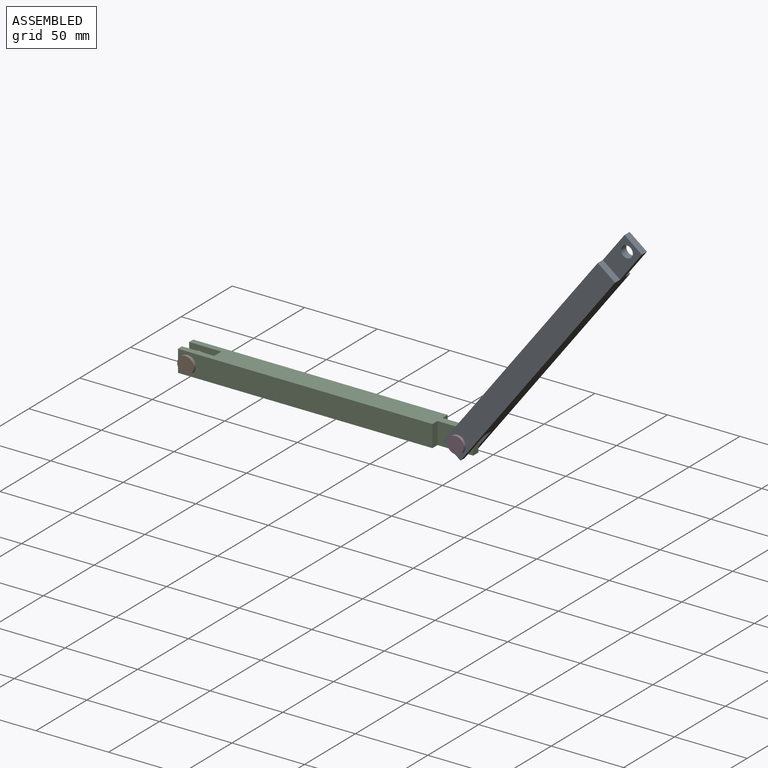
[diagram: assembled view]
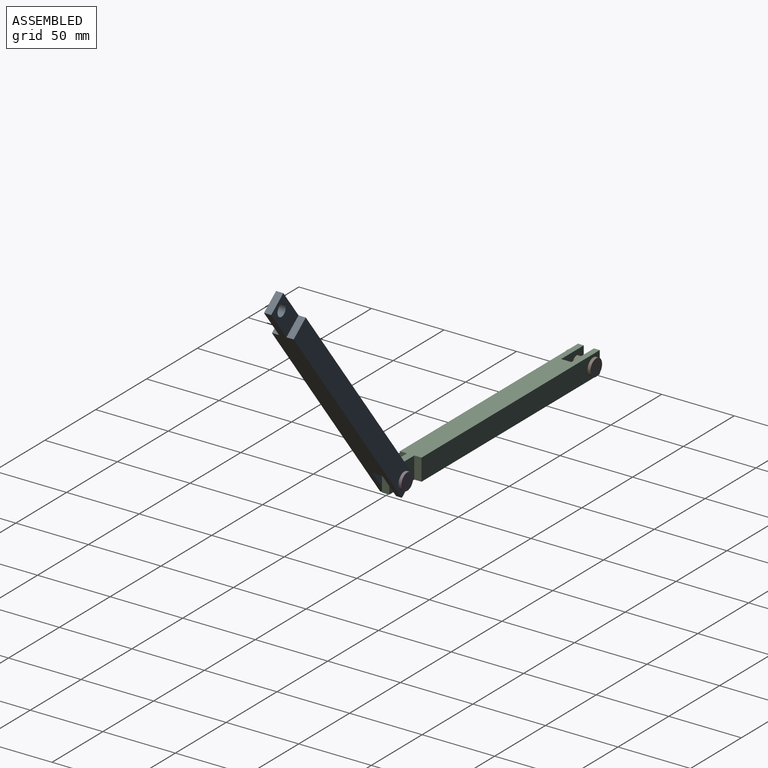
[diagram: assembled view, second angle]
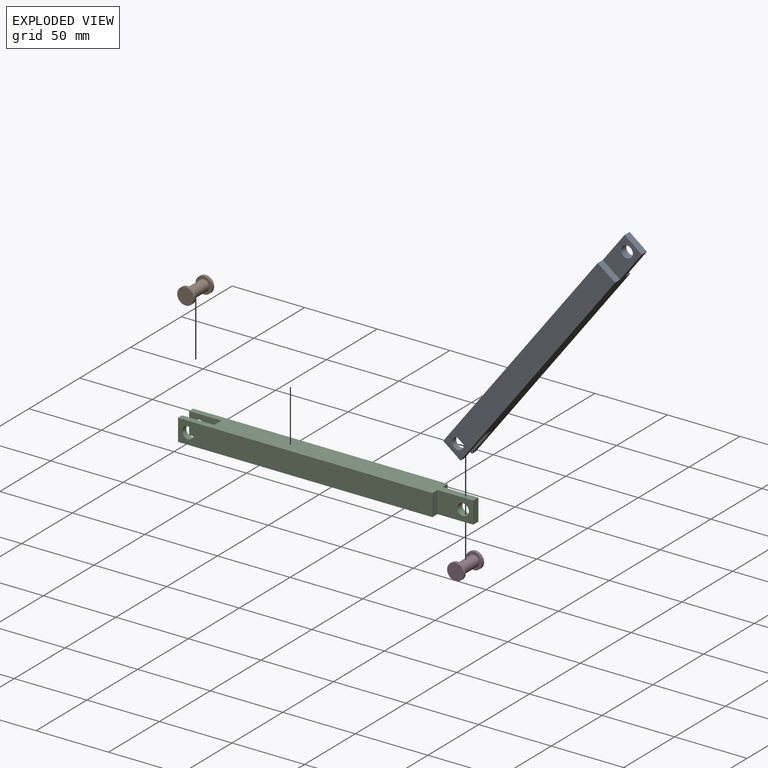
[diagram: exploded view]
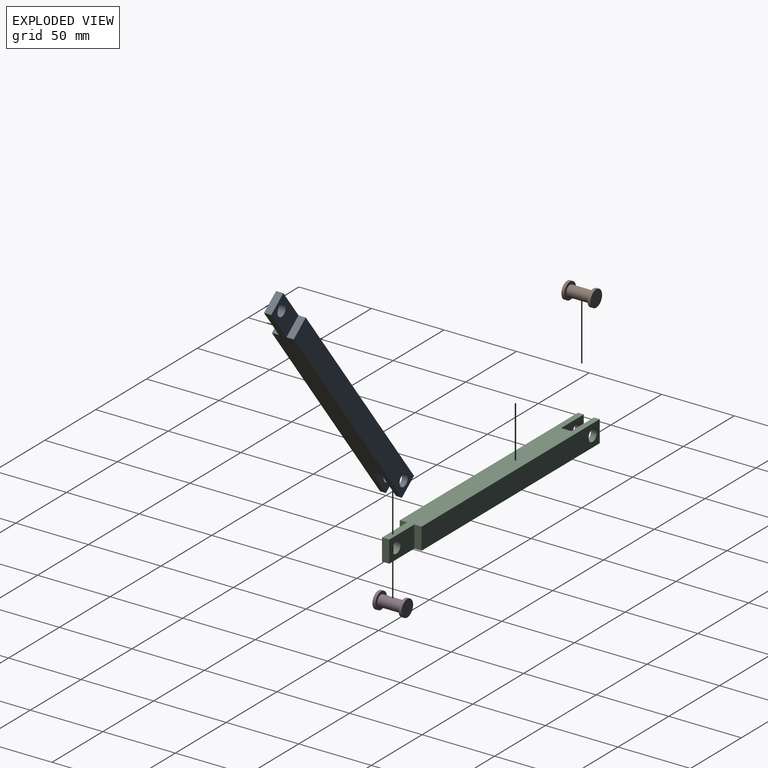
[diagram: exploded view, second angle]
ASSEMBLY  parts=4 mates=3
PART A: 17 faces, bbox 200x15x15 mm
  f0: plane 15x4mm, normal (-1,0,0), area 60mm2, adj f2,f4,f5,f15
  f1: plane 15x5mm, normal (1,0,0), area 75mm2, adj f4,f5,f10,f12
  f2: plane 175.37x15mm, normal (0,-1,0), area 2580.3mm2, adj f0,f4,f5,f8,f9
  f3: plane 175.37x15mm, normal (0,1,0), area 2580.3mm2, adj f4,f5,f6,f7,f11
  f4: plane 200x15mm, normal (0,0,1), area 2597.9mm2, adj f0,f1,f2,f3,f7,f9,f10,f11
  f5: plane 200x15mm, normal (0,0,-1), area 2597.9mm2, adj f0,f1,f2,f3,f7,f9,f10,f11
  f6: cylinder r=4mm len=8mm, axis (0,1,0), area 100.5mm2, adj f3,f14
  f7: plane 15x4mm, normal (-1,0,0), area 60mm2, adj f3,f4,f5,f14
  f8: cylinder r=4mm len=8mm, axis (0,1,0), area 100.5mm2, adj f2,f15
  f9: plane 15x5mm, normal (1,0,0), area 75mm2, adj f2,f4,f5,f10
  f10: plane 24.63x15mm, normal (0,-1,0), area 319.1mm2, adj f1,f4,f5,f9,f16
  f11: plane 15x5mm, normal (1,0,0), area 75mm2, adj f3,f4,f5,f12
  f12: plane 24.63x15mm, normal (0,1,0), area 319.1mm2, adj f1,f4,f5,f11,f16
  f13: plane 15x7mm, normal (-1,0,0), area 105mm2, adj f4,f5,f14,f15
  f14: plane 22.27x15mm, normal (0,-1,0), area 283.7mm2, adj f4,f5,f6,f7,f13
  f15: plane 22.27x15mm, normal (0,1,0), area 283.7mm2, adj f0,f4,f5,f8,f13
  f16: cylinder r=4mm len=8mm, axis (0,1,0), area 125.7mm2, adj f10,f12
PART B: 7 faces, bbox 11.5x20x11.5 mm
  f0: cylinder r=3.75mm len=16mm, axis (0,1,0), area 377mm2, adj f3,f6
  f1: cylinder r=5.75mm len=11.5mm, axis (0,-1,0), area 72.3mm2, adj f2,f3
  f2: plane 11.5x11.5mm, normal (0,1,0), area 103.9mm2, adj f1
  f3: plane 11.5x11.5mm, normal (0,-1,0), area 59.7mm2, adj f0,f1
  f4: cylinder r=5.75mm len=11.5mm, axis (0,1,0), area 72.3mm2, adj f5,f6
  f5: plane 11.5x11.5mm, normal (0,-1,0), area 103.9mm2, adj f4
  f6: plane 11.5x11.5mm, normal (0,1,0), area 59.7mm2, adj f0,f4
PART C: same geometry as A
PART D: same geometry as B
PLACE A rot(axis=(0,-1,0),52.6deg) t=(242.49,7.5,73.88)mm
PLACE B t=(63.43,8,-60.19)mm
PLACE C t=(93,7.5,0)mm
PLACE D t=(249.43,8,-60.19)mm
MATE cylindrical C.f16 <-> A.f6  axis (0,1,0) through (186,0,0)mm
MATE cylindrical B.f0 <-> C.f6  axis (0,1,0) through (0,0,0)mm
MATE cylindrical D.f0 <-> A.f6  axis (0,1,0) through (186,0,0)mm
